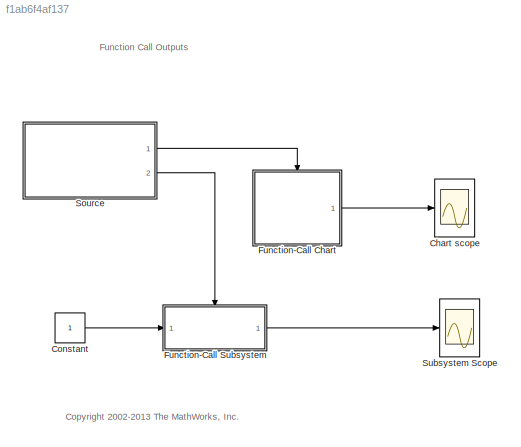
MODEL slx_f1ab6f4af137
KIND model
CONFIG AbsTol = auto
CONFIG EnableMultiTasking = on
CONFIG FixedStep = auto
CONFIG MaxStep = 1
CONFIG MinStep = auto
CONFIG RelTol = 1e-3
CONFIG SampleTimeConstraint = Unconstrained
CONFIG Solver = ode45
CONFIG SolverName = ode45
CONFIG StartTime = 0.0
CONFIG StopTime = 30
BLOCK [Scope] Chart scope
  NumInputPorts = 1
  Ports = [1]
  ScopeSpecificationString = Simulink.scopes.TimeScopeBlockCfg('CurrentConfiguration', extmgr.ConfigurationSet(extmgr.Configuration('Core','General UI',true),extmgr.Configuration('Core','Source UI',true),extmgr.Configuration('Sources','WiredSimulink',true,'DataLoggingSaveFormat','StructureWithTime','DataLoggingLimitDataPoints',true,'DataLoggingDecimation','1'),extmgr.Configuration('Visuals','Time Domain',true,'SerializedDispl...<+1718ch>
BLOCK [Constant] Constant
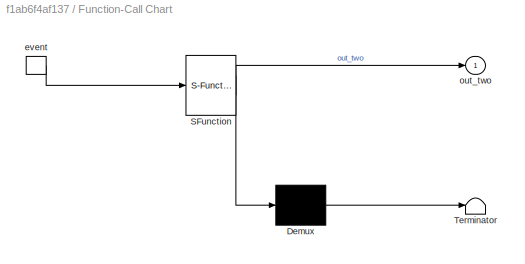
BLOCK [SubSystem] Function-Call Chart
  ErrorFcn = Stateflow.Translate.translate
  PermitHierarchicalResolution = ExplicitOnly
  Ports = [0, 1, 0, 1]
  RequestExecContextInheritance = off
  SFBlockType = Chart
  TreatAsAtomicUnit = on
  Variant = off
BLOCK [Demux] Function-Call Chart/ Demux 
  Outputs = 1
  Ports = [1, 1]
BLOCK [S-Function] Function-Call Chart/ SFunction 
  EnableBusSupport = off
  FunctionName = sf_sfun
  PortCounts = [1 2]
  Ports = [1, 2]
  SFcnIsStateOwnerBlock = off
  SFunctionDeploymentMode = off
  Tag = Stateflow S-Function sf_eventfcn 3
BLOCK [Terminator] Function-Call Chart/ Terminator 
BLOCK [TriggerPort] Function-Call Chart/event
  Ports = [0, 1]
  ShowOutputPort = on
  TriggerType = function-call
  VariantControl = (inherit)
  ZeroCross = off
BLOCK [Outport] Function-Call Chart/out_two
  IconDisplay = Port number
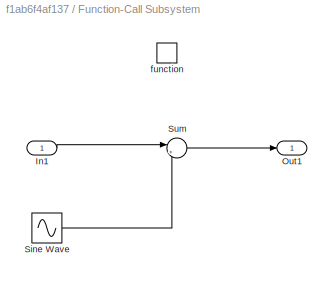
BLOCK [SubSystem] Function-Call Subsystem
  Ports = [1, 1, 0, 1]
  RequestExecContextInheritance = off
  TreatAsAtomicUnit = on
  Variant = off
BLOCK [Inport] Function-Call Subsystem/In1
  IconDisplay = Port number
BLOCK [Outport] Function-Call Subsystem/Out1
  IconDisplay = Port number
BLOCK [Sin] Function-Call Subsystem/Sine Wave
  Ports = [0, 1]
BLOCK [Sum] Function-Call Subsystem/Sum
  IconShape = round
  Inputs = |++
  Ports = [2, 1]
BLOCK [TriggerPort] Function-Call Subsystem/function
  Ports = []
  TriggerType = function-call
  VariantControl = (inherit)
  ZeroCross = off
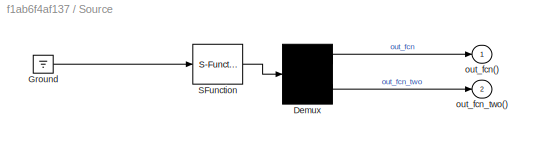
BLOCK [SubSystem] Source
  ErrorFcn = Stateflow.Translate.translate
  PermitHierarchicalResolution = ExplicitOnly
  Ports = [0, 2]
  RequestExecContextInheritance = off
  SFBlockType = Chart
  TreatAsAtomicUnit = on
  Variant = off
BLOCK [Demux] Source/ Demux 
  Outputs = 2
  Ports = [1, 2]
BLOCK [Ground] Source/ Ground 
BLOCK [S-Function] Source/ SFunction 
  EnableBusSupport = off
  FunctionName = sf_sfun
  PortCounts = [1 1]
  Ports = [1, 1]
  SFcnIsStateOwnerBlock = off
  SFunctionDeploymentMode = off
  Tag = Stateflow S-Function sf_eventfcn 1
BLOCK [Outport] Source/out_fcn()
  IconDisplay = Port number
BLOCK [Outport] Source/out_fcn_two()
  IconDisplay = Port number
  Port = 2
BLOCK [Scope] Subsystem Scope
  NumInputPorts = 1
  Ports = [1]
  ScopeSpecificationString = Simulink.scopes.TimeScopeBlockCfg('CurrentConfiguration', extmgr.ConfigurationSet(extmgr.Configuration('Core','General UI',true),extmgr.Configuration('Core','Source UI',true),extmgr.Configuration('Sources','WiredSimulink',true,'DataLoggingVariableName','ScopeData1','DataLoggingSaveFormat','StructureWithTime','DataLoggingDecimation','1'),extmgr.Configuration('Visuals','Time Domain',true,'Serialized...<+1724ch>
ANNOTATION (root): <copyright redacted>
ANNOTATION (root): Function Call Outputs
LINE Constant:1 -> Function-Call Subsystem:1
LINE Function-Call Chart:1 -> Chart scope:1
LINE Function-Call Subsystem/In1:1 -> Function-Call Subsystem/Sum:1
LINE Function-Call Subsystem/Sine Wave:1 -> Function-Call Subsystem/Sum:2
LINE Function-Call Subsystem/Sum:1 -> Function-Call Subsystem/Out1:1
LINE Function-Call Subsystem:1 -> Subsystem Scope:1
LINE Source:1 -> Function-Call Chart:trigger
LINE Source:2 -> Function-Call Subsystem:trigger
CHART Source states=4 transitions=4
  STATE_LABEL 'One'
  STATE_LABEL 'A'
  STATE_LABEL 'after(3,wakeup)/out_fcn;'
  STATE_LABEL 'A'
  STATE_LABEL 'Two'
  STATE_LABEL 'B'
  STATE_LABEL 'after(2,wakeup)/out_fcn_two;'
  STATE_LABEL 'B'
CHART Function-Call Chart states=2 transitions=3
  STATE_LABEL 'B\nen:out_two=1;'
  STATE_LABEL 'A\nen:out_two=0;'
